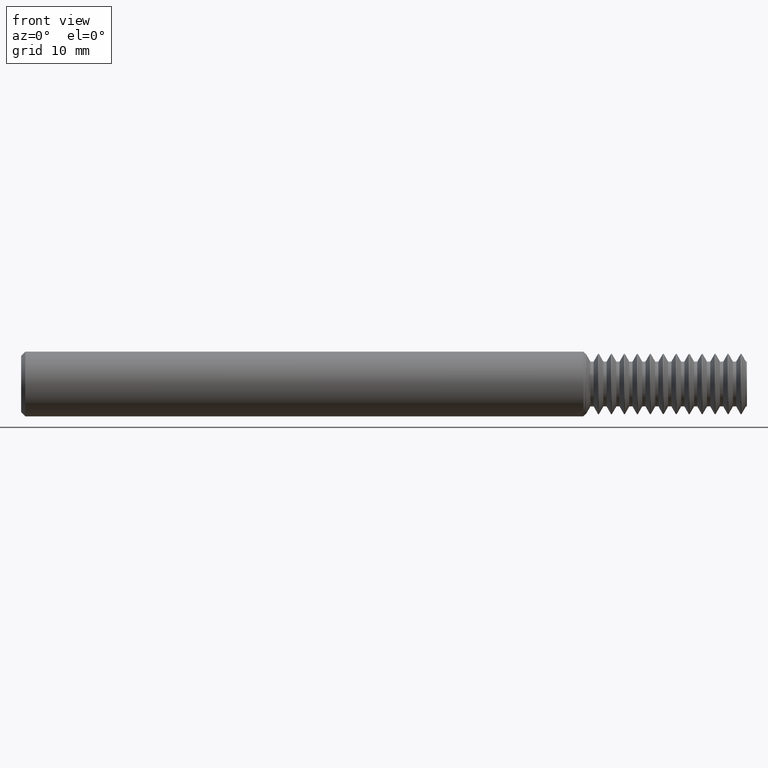
[diagram: clean part render]
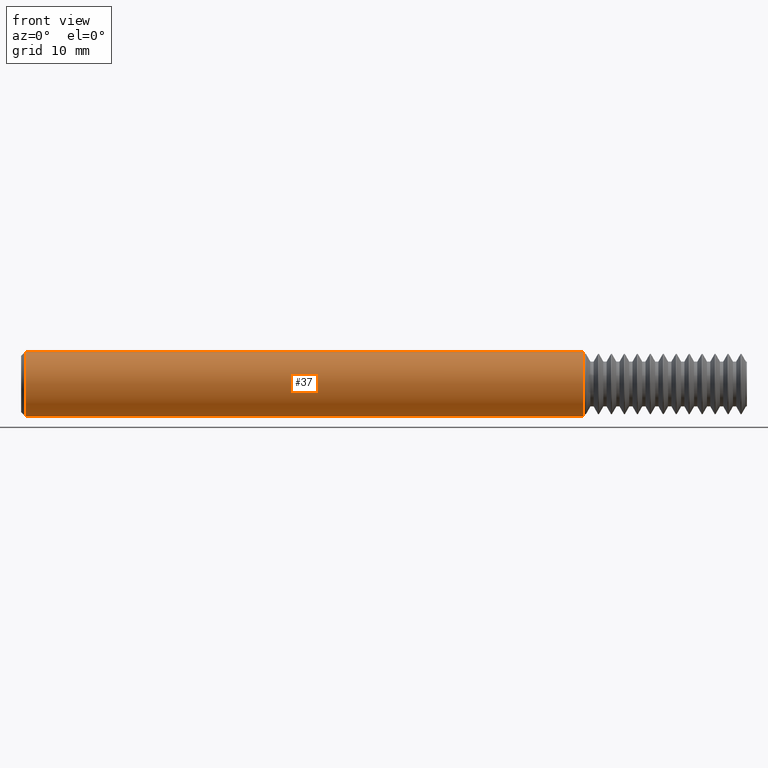
[diagram: same view with one face highlighted and labeled with its STEP entity id]
A machine part, front view. The second image highlights one B-rep face of the part: STEP entity #37.
In plain terms, the highlighted cylindrical surface (edge-blend (fillet) strip) has radius 3.9649 mm, axis along (-1, -0, -0).
Its self-contained STEP definition (entity closure, byte-faithful):
#37 = ADVANCED_FACE ( 'NONE', ( #1879 ), #1893, .T. ) ;
#81 = VERTEX_POINT ( 'NONE', #1948 ) ;
#147 = AXIS2_PLACEMENT_3D ( 'NONE', #1031, #1528, #825 ) ;
#239 = DIRECTION ( 'NONE',  ( 0.000000000000000000, 0.000000000000000000, 1.000000000000000000 ) ) ;
#240 = CIRCLE ( 'NONE', #147, 0.1560999999999999888 ) ;
#300 = EDGE_CURVE ( 'NONE', #867, #81, #2158, .T. ) ;
#326 = DIRECTION ( 'NONE',  ( 0.000000000000000000, 0.000000000000000000, 1.000000000000000000 ) ) ;
#374 = CARTESIAN_POINT ( 'NONE',  ( 2.711399999999999810, 1.911673653469018068E-17, -0.1560999999999999888 ) ) ;
#531 = VERTEX_POINT ( 'NONE', #2794 ) ;
#591 = CARTESIAN_POINT ( 'NONE',  ( 0.000000000000000000, 0.000000000000000000, 0.1560999999999999888 ) ) ;
#620 = DIRECTION ( 'NONE',  ( -1.000000000000000000, -0.000000000000000000, -0.000000000000000000 ) ) ;
#800 = EDGE_CURVE ( 'NONE', #1789, #531, #240, .T. ) ;
#825 = DIRECTION ( 'NONE',  ( 0.000000000000000000, 0.000000000000000000, -1.000000000000000000 ) ) ;
#867 = VERTEX_POINT ( 'NONE', #374 ) ;
#903 = DIRECTION ( 'NONE',  ( -1.000000000000000000, -0.000000000000000000, -0.000000000000000000 ) ) ;
#1031 = CARTESIAN_POINT ( 'NONE',  ( 0.02000000000000029879, 0.000000000000000000, 0.000000000000000000 ) ) ;
#1113 = CARTESIAN_POINT ( 'NONE',  ( 2.711399999999999810, 0.000000000000000000, 0.000000000000000000 ) ) ;
#1242 = EDGE_CURVE ( 'NONE', #81, #1789, #1525, .T. ) ;
#1348 = EDGE_LOOP ( 'NONE', ( #1771, #1503, #1785, #2468 ) ) ;
#1503 = ORIENTED_EDGE ( 'NONE', *, *, #300, .T. ) ;
#1525 = LINE ( 'NONE', #591, #2029 ) ;
#1528 = DIRECTION ( 'NONE',  ( 1.000000000000000000, 0.000000000000000000, 0.000000000000000000 ) ) ;
#1593 = EDGE_CURVE ( 'NONE', #867, #531, #2119, .T. ) ;
#1722 = CARTESIAN_POINT ( 'NONE',  ( 0.000000000000000000, 1.911673653469018068E-17, -0.1560999999999999888 ) ) ;
#1725 = DIRECTION ( 'NONE',  ( -1.000000000000000000, -0.000000000000000000, -0.000000000000000000 ) ) ;
#1771 = ORIENTED_EDGE ( 'NONE', *, *, #1593, .F. ) ;
#1785 = ORIENTED_EDGE ( 'NONE', *, *, #1242, .T. ) ;
#1789 = VERTEX_POINT ( 'NONE', #2379 ) ;
#1852 = CARTESIAN_POINT ( 'NONE',  ( 0.000000000000000000, 0.000000000000000000, 0.000000000000000000 ) ) ;
#1879 = FACE_OUTER_BOUND ( 'NONE', #1348, .T. ) ;
#1893 = CYLINDRICAL_SURFACE ( 'NONE', #2202, 0.1560999999999999888 ) ;
#1948 = CARTESIAN_POINT ( 'NONE',  ( 2.711399999999999810, 0.000000000000000000, 0.1560999999999999888 ) ) ;
#2029 = VECTOR ( 'NONE', #1725, 39.37007874015748143 ) ;
#2119 = LINE ( 'NONE', #1722, #2502 ) ;
#2158 = CIRCLE ( 'NONE', #2658, 0.1560999999999999888 ) ;
#2202 = AXIS2_PLACEMENT_3D ( 'NONE', #1852, #2719, #326 ) ;
#2379 = CARTESIAN_POINT ( 'NONE',  ( 0.02000000000000029879, 1.911673653469018068E-17, 0.1560999999999999888 ) ) ;
#2468 = ORIENTED_EDGE ( 'NONE', *, *, #800, .T. ) ;
#2502 = VECTOR ( 'NONE', #620, 39.37007874015748143 ) ;
#2658 = AXIS2_PLACEMENT_3D ( 'NONE', #1113, #903, #239 ) ;
#2719 = DIRECTION ( 'NONE',  ( -1.000000000000000000, -0.000000000000000000, -0.000000000000000000 ) ) ;
#2794 = CARTESIAN_POINT ( 'NONE',  ( 0.02000000000000029879, 0.000000000000000000, -0.1560999999999999888 ) ) ;